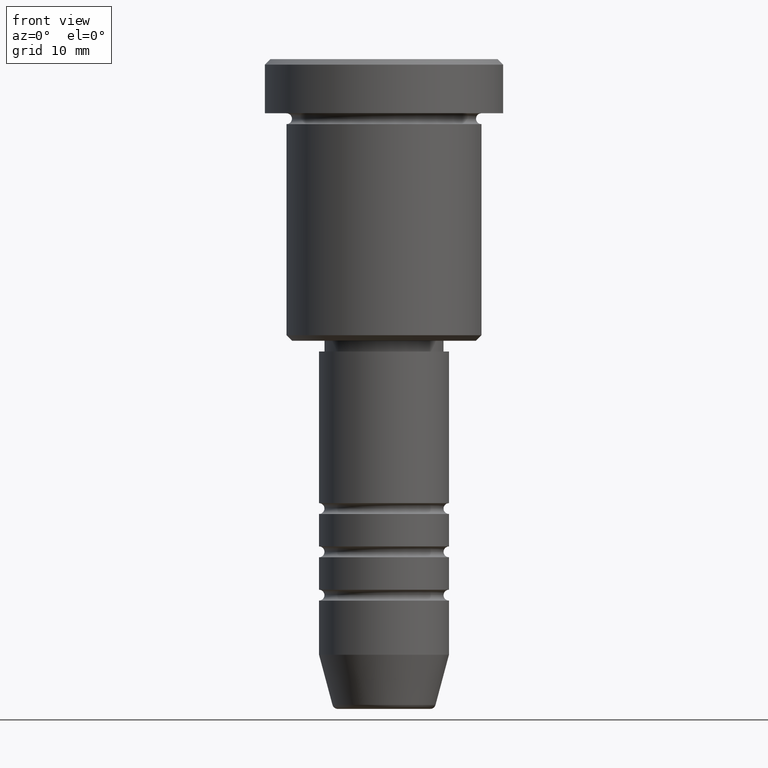
[diagram: clean part render]
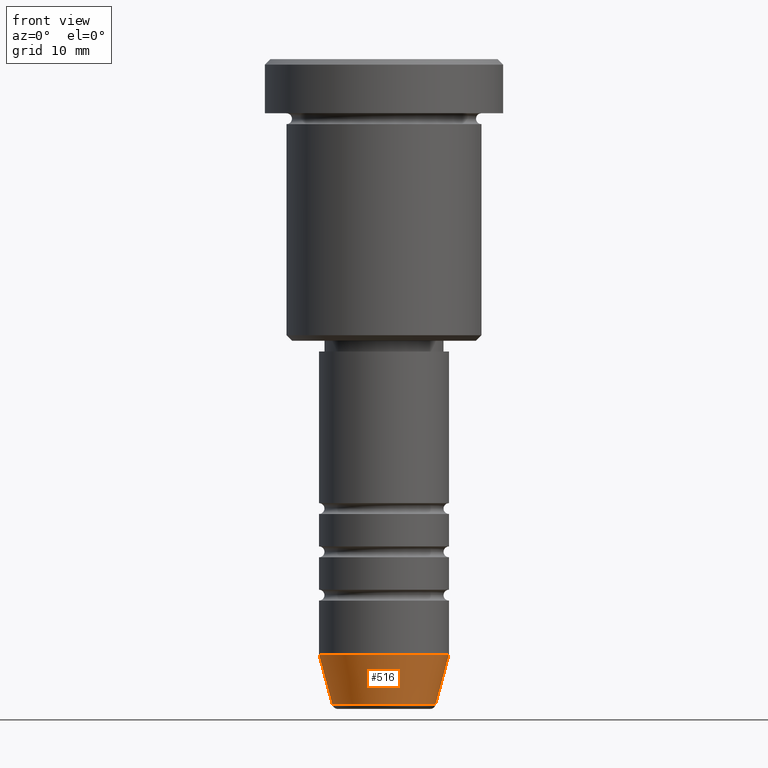
[diagram: same view with one face highlighted and labeled with its STEP entity id]
A machine part, front view. The second image highlights one B-rep face of the part: STEP entity #516.
In plain terms, the highlighted conical surface has half-angle 15 deg.
Its self-contained STEP definition (entity closure, byte-faithful):
#104 = DIRECTION ( 'NONE',  ( 1.000000000000000000, 0.000000000000000000, 0.000000000000000000 ) ) ;
#178 = VERTEX_POINT ( 'NONE', #454 ) ;
#185 = EDGE_LOOP ( 'NONE', ( #348, #694, #1082, #528 ) ) ;
#188 = EDGE_CURVE ( 'NONE', #969, #967, #410, .T. ) ;
#242 = VECTOR ( 'NONE', #660, 1000.000000000000000 ) ;
#295 = FACE_OUTER_BOUND ( 'NONE', #185, .T. ) ;
#302 = CARTESIAN_POINT ( 'NONE',  ( 6.000000000000000000, 0.000000000000000000, -55.00000000000000000 ) ) ;
#310 = CARTESIAN_POINT ( 'NONE',  ( 6.000000000000000000, 0.000000000000000000, -55.00000000000000000 ) ) ;
#348 = ORIENTED_EDGE ( 'NONE', *, *, #791, .F. ) ;
#363 = CARTESIAN_POINT ( 'NONE',  ( -4.759553456999437770, 6.588326350684600291E-16, -59.62940952255126348 ) ) ;
#374 = EDGE_CURVE ( 'NONE', #967, #580, #933, .T. ) ;
#392 = DIRECTION ( 'NONE',  ( 0.2588190451025213501, 0.000000000000000000, 0.9659258262890680902 ) ) ;
#410 = CIRCLE ( 'NONE', #941, 4.759553456999437770 ) ;
#439 = DIRECTION ( 'NONE',  ( 1.000000000000000000, 0.000000000000000000, 0.000000000000000000 ) ) ;
#454 = CARTESIAN_POINT ( 'NONE',  ( -6.000000000000000000, 7.347880794884119736E-16, -55.00000000000000000 ) ) ;
#516 = ADVANCED_FACE ( 'NONE', ( #295 ), #1162, .T. ) ;
#527 = DIRECTION ( 'NONE',  ( -0.000000000000000000, -0.000000000000000000, 1.000000000000000000 ) ) ;
#528 = ORIENTED_EDGE ( 'NONE', *, *, #625, .F. ) ;
#539 = DIRECTION ( 'NONE',  ( 1.000000000000000000, 0.000000000000000000, 0.000000000000000000 ) ) ;
#580 = VERTEX_POINT ( 'NONE', #302 ) ;
#625 = EDGE_CURVE ( 'NONE', #178, #580, #636, .T. ) ;
#636 = CIRCLE ( 'NONE', #712, 6.000000000000000000 ) ;
#649 = CARTESIAN_POINT ( 'NONE',  ( 0.000000000000000000, 0.000000000000000000, -55.00000000000000000 ) ) ;
#660 = DIRECTION ( 'NONE',  ( -0.2588190451025213501, 3.169619151431772337E-17, 0.9659258262890680902 ) ) ;
#694 = ORIENTED_EDGE ( 'NONE', *, *, #188, .T. ) ;
#712 = AXIS2_PLACEMENT_3D ( 'NONE', #810, #737, #539 ) ;
#737 = DIRECTION ( 'NONE',  ( -0.000000000000000000, -0.000000000000000000, 1.000000000000000000 ) ) ;
#749 = AXIS2_PLACEMENT_3D ( 'NONE', #649, #827, #104 ) ;
#763 = CARTESIAN_POINT ( 'NONE',  ( -6.000000000000000000, 7.347880794884119736E-16, -55.00000000000000000 ) ) ;
#791 = EDGE_CURVE ( 'NONE', #969, #178, #839, .T. ) ;
#796 = CARTESIAN_POINT ( 'NONE',  ( 0.000000000000000000, 0.000000000000000000, -59.62940952255126348 ) ) ;
#810 = CARTESIAN_POINT ( 'NONE',  ( 0.000000000000000000, 0.000000000000000000, -55.00000000000000000 ) ) ;
#827 = DIRECTION ( 'NONE',  ( -0.000000000000000000, -0.000000000000000000, 1.000000000000000000 ) ) ;
#839 = LINE ( 'NONE', #763, #242 ) ;
#933 = LINE ( 'NONE', #310, #1121 ) ;
#941 = AXIS2_PLACEMENT_3D ( 'NONE', #796, #527, #439 ) ;
#967 = VERTEX_POINT ( 'NONE', #1009 ) ;
#969 = VERTEX_POINT ( 'NONE', #363 ) ;
#1009 = CARTESIAN_POINT ( 'NONE',  ( 4.759553456999437770, 0.000000000000000000, -59.62940952255126348 ) ) ;
#1082 = ORIENTED_EDGE ( 'NONE', *, *, #374, .T. ) ;
#1121 = VECTOR ( 'NONE', #392, 1000.000000000000000 ) ;
#1162 = CONICAL_SURFACE ( 'NONE', #749, 6.000000000000000000, 0.2617993877991500740 ) ;